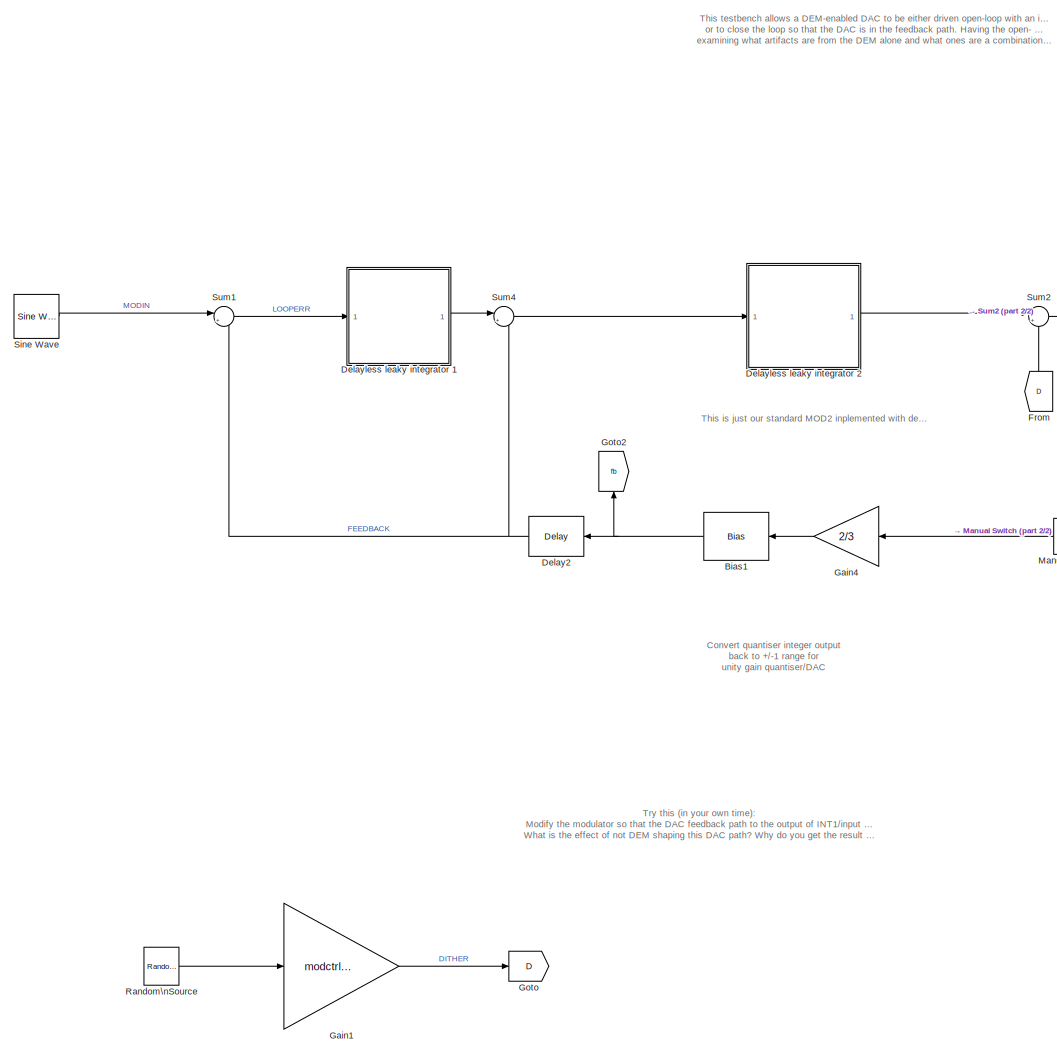
[diagram: root canvas - part 1/2, left side, full height]
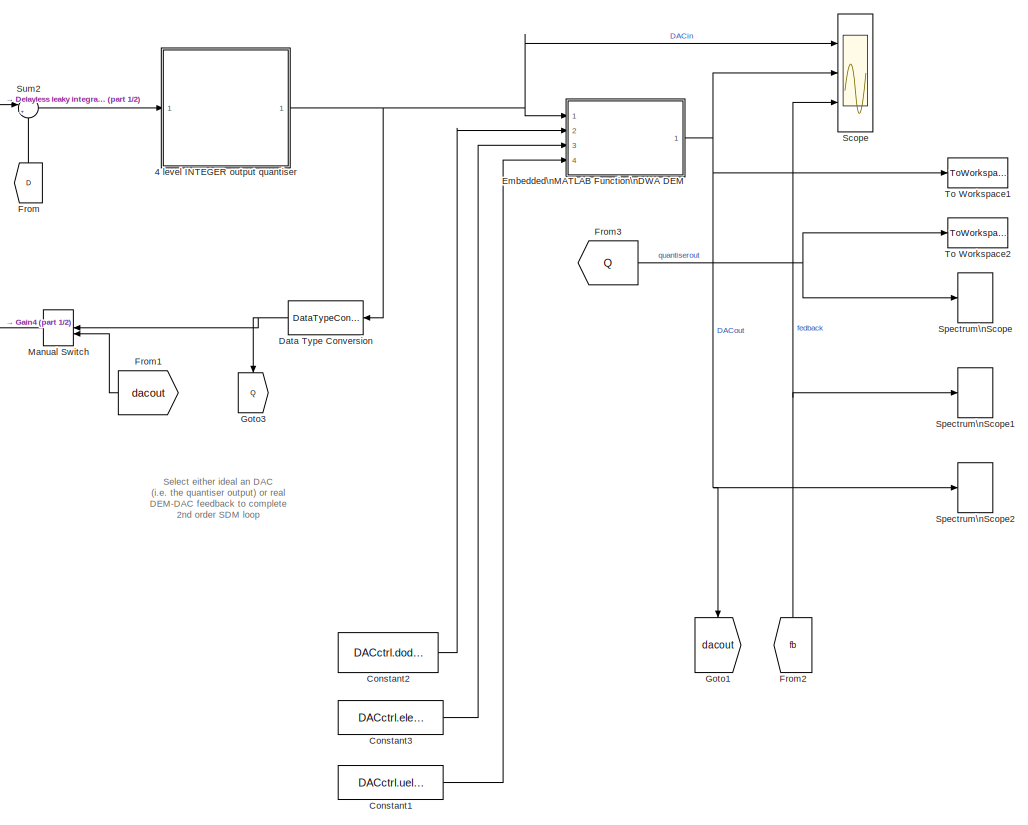
[diagram: root canvas - part 2/2, right side, full height]
MODEL mod2_dwatest
KIND model
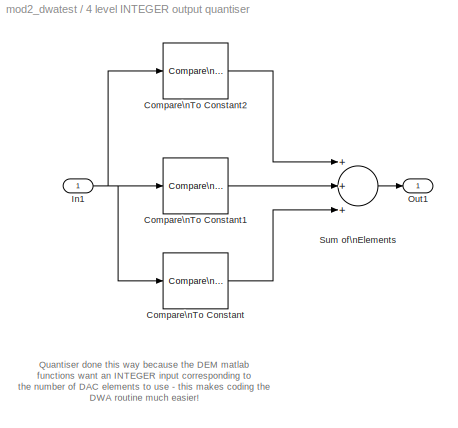
BLOCK [SubSystem] 4 level INTEGER  output quantiser
  FunctionWithSeparateData = off
  MaskHideContents = off
  MinAlgLoopOccurrences = off
  Opaque = off
  Ports = [1, 1]
  PropExecContextOutsideSubsystem = off
  RTWSystemCode = Auto
  RequestExecContextInheritance = off
  SID = 106
BLOCK [Reference] 4 level INTEGER  output quantiser/Compare\nTo Constant  REF=simulink/Logic and Bit\nOperations/Compare\nTo Constant
  OutDataTypeStr = uint8
  Ports = [1, 1]
  SID = 70
  SourceBlock = simulink/Logic and Bit\nOperations/Compare\nTo Constant
  SourceType = Compare To Constant
  ZeroCross = on
  const = -2/3
  relop = >=
BLOCK [Reference] 4 level INTEGER  output quantiser/Compare\nTo Constant1  REF=simulink/Logic and Bit\nOperations/Compare\nTo Constant
  OutDataTypeStr = uint8
  Ports = [1, 1]
  SID = 71
  SourceBlock = simulink/Logic and Bit\nOperations/Compare\nTo Constant
  SourceType = Compare To Constant
  ZeroCross = on
  const = 0
  relop = >=
BLOCK [Reference] 4 level INTEGER  output quantiser/Compare\nTo Constant2  REF=simulink/Logic and Bit\nOperations/Compare\nTo Constant
  OutDataTypeStr = uint8
  Ports = [1, 1]
  SID = 72
  SourceBlock = simulink/Logic and Bit\nOperations/Compare\nTo Constant
  SourceType = Compare To Constant
  ZeroCross = on
  const = 2/3
  relop = >=
BLOCK [Inport] 4 level INTEGER  output quantiser/In1
  IconDisplay = Port number
  SID = 107
BLOCK [Outport] 4 level INTEGER  output quantiser/Out1
  IconDisplay = Port number
  SID = 108
BLOCK [Sum] 4 level INTEGER  output quantiser/Sum of\nElements
  InputSameDT = off
  Inputs = +++
  OutDataTypeStr = Inherit: Inherit via internal rule
  Ports = [3, 1]
  SID = 81
  SaturateOnIntegerOverflow = off
BLOCK [Bias] Bias1
  Bias = -1
  SID = 98
  SaturateOnIntegerOverflow = off
BLOCK [Constant] Constant1
  SID = 90
  SampleTime = 1/Fs
  Value = DACctrl.uelement
BLOCK [Constant] Constant2
  SID = 74
  SampleTime = 1/Fs
  Value = DACctrl.dodem
BLOCK [Constant] Constant3
  SID = 75
  SampleTime = 1/Fs
  Value = DACctrl.elecount
BLOCK [DataTypeConversion] Data Type Conversion
  RndMeth = Floor
  SID = 88
  SaturateOnIntegerOverflow = off
BLOCK [Reference] Delay2  REF=dspsigops/Delay
  InputProcessing = Inherited (this choice will be removed - see release notes)
  Ports = [1, 1]
  SID = 69
  SourceBlock = dspsigops/Delay
  SourceType = Delay
  UserData = DataTag0
  UserDataPersistent = on
  delay = 1
  dif_ic_for_ch = off
  dif_ic_for_dly = off
  dly_unit = Samples
  ic = 0
  ic_detail = off
  reset_popup = None
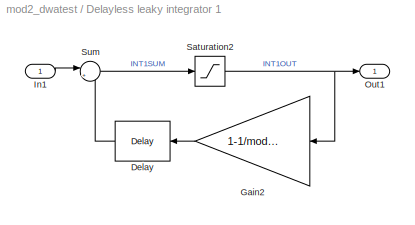
BLOCK [SubSystem] Delayless leaky integrator 1
  FunctionWithSeparateData = off
  MaskHideContents = off
  MinAlgLoopOccurrences = off
  Opaque = off
  Ports = [1, 1]
  PropExecContextOutsideSubsystem = off
  RTWSystemCode = Auto
  RequestExecContextInheritance = off
  SID = 109
BLOCK [Reference] Delayless leaky integrator 1/Delay  REF=dspsigops/Delay
  InputProcessing = Inherited (this choice will be removed - see release notes)
  Ports = [1, 1]
  SID = 67
  SourceBlock = dspsigops/Delay
  SourceType = Delay
  UserData = DataTag1
  UserDataPersistent = on
  delay = 1
  dif_ic_for_ch = off
  dif_ic_for_dly = off
  dly_unit = Samples
  ic = 0
  ic_detail = off
  reset_popup = None
BLOCK [Gain] Delayless leaky integrator 1/Gain2
  AttributesFormatString = Integrator leakage
  Gain = 1-1/modctrl.igain1
  OutDataTypeStr = Inherit: Inherit via internal rule
  ParamDataTypeStr = Inherit: Inherit via internal rule
  SID = 32
  SaturateOnIntegerOverflow = off
BLOCK [Inport] Delayless leaky integrator 1/In1
  IconDisplay = Port number
  SID = 111
BLOCK [Outport] Delayless leaky integrator 1/Out1
  IconDisplay = Port number
  SID = 110
BLOCK [Saturate] Delayless leaky integrator 1/Saturation2
  InputPortMap = u0
  LowerLimit = -(modctrl.isat1)
  Ports = [1, 1]
  SID = 86
  UpperLimit = modctrl.isat1
BLOCK [Sum] Delayless leaky integrator 1/Sum
  AttributesFormatString = Integrator summer
  IconShape = round
  InputSameDT = off
  Inputs = |++
  OutDataTypeStr = Inherit: Inherit via internal rule
  Ports = [2, 1]
  SID = 3
  SaturateOnIntegerOverflow = off
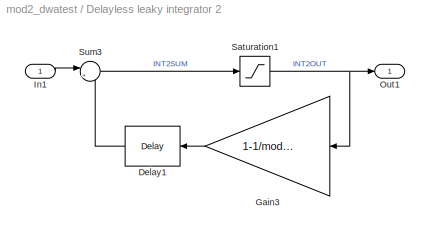
BLOCK [SubSystem] Delayless leaky integrator 2
  FunctionWithSeparateData = off
  MaskHideContents = off
  MinAlgLoopOccurrences = off
  Opaque = off
  Ports = [1, 1]
  PropExecContextOutsideSubsystem = off
  RTWSystemCode = Auto
  RequestExecContextInheritance = off
  SID = 112
BLOCK [Reference] Delayless leaky integrator 2/Delay1  REF=dspsigops/Delay
  InputProcessing = Inherited (this choice will be removed - see release notes)
  Ports = [1, 1]
  SID = 68
  SourceBlock = dspsigops/Delay
  SourceType = Delay
  UserData = DataTag2
  UserDataPersistent = on
  delay = 1
  dif_ic_for_ch = off
  dif_ic_for_dly = off
  dly_unit = Samples
  ic = 0
  ic_detail = off
  reset_popup = None
BLOCK [Gain] Delayless leaky integrator 2/Gain3
  AttributesFormatString = Integrator leakage
  Gain = 1-1/modctrl.igain2
  OutDataTypeStr = Inherit: Inherit via internal rule
  ParamDataTypeStr = Inherit: Inherit via internal rule
  SID = 61
  SaturateOnIntegerOverflow = off
BLOCK [Inport] Delayless leaky integrator 2/In1
  IconDisplay = Port number
  SID = 114
BLOCK [Outport] Delayless leaky integrator 2/Out1
  IconDisplay = Port number
  SID = 113
BLOCK [Saturate] Delayless leaky integrator 2/Saturation1
  InputPortMap = u0
  LowerLimit = -(modctrl.isat2)
  Ports = [1, 1]
  SID = 62
  UpperLimit = modctrl.isat2
BLOCK [Sum] Delayless leaky integrator 2/Sum3
  AttributesFormatString = Integrator summer
  IconShape = round
  InputSameDT = off
  Inputs = |++
  OutDataTypeStr = Inherit: Inherit via internal rule
  Ports = [2, 1]
  SID = 63
  SaturateOnIntegerOverflow = off
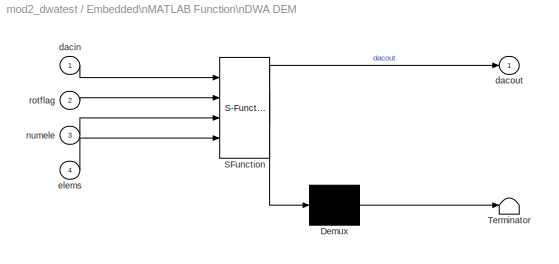
BLOCK [SubSystem] Embedded\nMATLAB Function\nDWA DEM
  ErrorFcn = Stateflow.Translate.translate
  FunctionWithSeparateData = off
  MaskHideContents = off
  MinAlgLoopOccurrences = off
  Opaque = off
  PermitHierarchicalResolution = ExplicitOnly
  Ports = [4, 1]
  PropExecContextOutsideSubsystem = off
  RTWSystemCode = Auto
  RequestExecContextInheritance = off
  SFBlockType = MATLAB Function
  SID = 116
  TreatAsAtomicUnit = on
BLOCK [Demux] Embedded\nMATLAB Function\nDWA DEM/ Demux 
  Outputs = 1
  Ports = [1, 1]
  SID = 116::80
BLOCK [S-Function] Embedded\nMATLAB Function\nDWA DEM/ SFunction 
  EnableBusSupport = on
  FunctionName = sf_sfun
  PortCounts = [4 2]
  Ports = [4, 2]
  SID = 116::79
  Tag = Stateflow S-Function mod2_dwatest 2
BLOCK [Terminator] Embedded\nMATLAB Function\nDWA DEM/ Terminator 
  SID = 116::81
BLOCK [Inport] Embedded\nMATLAB Function\nDWA DEM/dacin
  IconDisplay = Port number
  SID = 116::78
BLOCK [Outport] Embedded\nMATLAB Function\nDWA DEM/dacout
  IconDisplay = Port number
  SID = 116::85
BLOCK [Inport] Embedded\nMATLAB Function\nDWA DEM/elems
  IconDisplay = Port number
  Port = 4
  SID = 116::84
BLOCK [Inport] Embedded\nMATLAB Function\nDWA DEM/numele
  IconDisplay = Port number
  Port = 3
  SID = 116::83
BLOCK [Inport] Embedded\nMATLAB Function\nDWA DEM/rotflag
  IconDisplay = Port number
  Port = 2
  SID = 116::82
BLOCK [From] From
  GotoTag = D
  SID = 93
BLOCK [From] From1
  GotoTag = dacout
  SID = 96
BLOCK [From] From2
  GotoTag = fb
  SID = 102
BLOCK [From] From3
  GotoTag = Q
  SID = 105
BLOCK [Gain] Gain1
  AttributesFormatString = Dither level adjust
  Gain = modctrl.dgain1
  OutDataTypeStr = Inherit: Inherit via internal rule
  ParamDataTypeStr = Inherit: Inherit via internal rule
  SID = 29
  SaturateOnIntegerOverflow = off
BLOCK [Gain] Gain4
  AttributesFormatString = Integrator leakage
  Gain = 2/3
  OutDataTypeStr = Inherit: Inherit via internal rule
  ParamDataTypeStr = Inherit: Inherit via internal rule
  SID = 99
  SaturateOnIntegerOverflow = off
BLOCK [Goto] Goto
  GotoTag = D
  SID = 92
BLOCK [Goto] Goto1
  GotoTag = dacout
  SID = 97
BLOCK [Goto] Goto2
  GotoTag = fb
  SID = 100
BLOCK [Goto] Goto3
  GotoTag = Q
  SID = 104
BLOCK [ManualSwitch] Manual Switch
  CurrentSetting = 0
  SID = 94
BLOCK [Reference] Random\nSource  REF=dspsrcs4/Random\nSource
  AttributesFormatString = Dither source
  CltLength = 12
  DataType = Double
  IsInherit = off
  MaxVal = 1
  MeanVal = 0
  MinVal = -1
  NormMethod = Ziggurat
  OutComplex = Real
  Ports = [0, 1]
  RepMode = Not repeatable
  SID = 25
  SampFrame = 1
  SampMode = Discrete
  SampTime = 1/Fs
  SourceBlock = dspsrcs4/Random\nSource
  SourceType = Random Source
  SrcType = Uniform
  UserData = DataTag3
  UserDataPersistent = on
  VarVal = 1
  rawSeed = 1
BLOCK [Scope] Scope
  DataFormat = StructureWithTime
  Floating = off
  NumInputPorts = 3
  Ports = [3]
  SID = 80
  SampleTime = 0
  ShowLegends = off
  YMax = 5~5~5
  YMin = -5~-5~-5
  ZoomMode = xonly
BLOCK [Reference] Sine Wave  REF=dspsrcs4/Sine Wave
  Amplitude = sinamp
  CompMethod = Trigonometric fcn
  Frequency = sinfreq
  LastOutDataTypeStr = double
  OutComplex = Real
  OutDataTypeStr = double
  Phase = 0
  Ports = [0, 1]
  ResetState = Restart at time zero
  SID = 85
  SampleMode = Discrete
  SampleTime = 1/Fs
  SamplesPerFrame = 1
  SourceBlock = dspsrcs4/Sine Wave
  SourceType = Sine Wave
  TableSize = Speed
  additionalParams = off
  allowOverrides = on
  dataType = double
  fracBitsMode = Best precision
  numFracBits = 15
  udDataType = sfix(16)
  wordLen = 16
BLOCK [SpectrumAnalyzer] Spectrum\nScope
  CloseFcn = scopeextensions.ScopeBlock.callback(gcbh, 'onBlockClose');
  CopyFcn = scopeextensions.ScopeBlock.callback(gcbh, 'onBlockCopy', gcbh);
  DeleteFcn = scopeextensions.ScopeBlock.callback(gcbh, 'onBlockDelete');
  NameChangeFcn = scopeextensions.ScopeBlock.callback(gcbh, 'onBlockRename');
  Ports = [1]
  PreDeleteFcn = scopeextensions.ScopeBlock.callback(gcbh, 'onBlockPreDelete');
  PreSaveFcn = scopeextensions.ScopeBlock.callback(gcbh, 'onModelSave');
  SID = 21
  UserData = DataTag4
  UserDataPersistent = on
BLOCK [SpectrumAnalyzer] Spectrum\nScope1
  CloseFcn = scopeextensions.ScopeBlock.callback(gcbh, 'onBlockClose');
  CopyFcn = scopeextensions.ScopeBlock.callback(gcbh, 'onBlockCopy', gcbh);
  DeleteFcn = scopeextensions.ScopeBlock.callback(gcbh, 'onBlockDelete');
  NameChangeFcn = scopeextensions.ScopeBlock.callback(gcbh, 'onBlockRename');
  Ports = [1]
  PreDeleteFcn = scopeextensions.ScopeBlock.callback(gcbh, 'onBlockPreDelete');
  PreSaveFcn = scopeextensions.ScopeBlock.callback(gcbh, 'onModelSave');
  SID = 117
  UserData = DataTag5
  UserDataPersistent = on
BLOCK [SpectrumAnalyzer] Spectrum\nScope2
  CloseFcn = scopeextensions.ScopeBlock.callback(gcbh, 'onBlockClose');
  CopyFcn = scopeextensions.ScopeBlock.callback(gcbh, 'onBlockCopy', gcbh);
  DeleteFcn = scopeextensions.ScopeBlock.callback(gcbh, 'onBlockDelete');
  NameChangeFcn = scopeextensions.ScopeBlock.callback(gcbh, 'onBlockRename');
  Ports = [1]
  PreDeleteFcn = scopeextensions.ScopeBlock.callback(gcbh, 'onBlockPreDelete');
  PreSaveFcn = scopeextensions.ScopeBlock.callback(gcbh, 'onModelSave');
  SID = 118
  UserData = DataTag6
  UserDataPersistent = on
BLOCK [Sum] Sum1
  AttributesFormatString = Modulator input\\nloop servo error (input - fbk)
  IconShape = round
  InputSameDT = off
  Inputs = |+-
  OutDataTypeStr = Inherit: Inherit via internal rule
  Ports = [2, 1]
  SID = 7
  SaturateOnIntegerOverflow = off
BLOCK [Sum] Sum2
  IconShape = round
  InputSameDT = off
  Inputs = |++
  OutDataTypeStr = Inherit: Inherit via internal rule
  Ports = [2, 1]
  SID = 30
  SaturateOnIntegerOverflow = off
BLOCK [Sum] Sum4
  IconShape = round
  InputSameDT = off
  Inputs = |+-
  OutDataTypeStr = Inherit: Inherit via internal rule
  Ports = [2, 1]
  SID = 64
  SaturateOnIntegerOverflow = off
BLOCK [ToWorkspace] To Workspace1
  MaxDataPoints = inf
  Ports = [1]
  SID = 91
  SampleTime = -1
  VariableName = DACout
BLOCK [ToWorkspace] To Workspace2
  MaxDataPoints = inf
  Ports = [1]
  SID = 103
  SampleTime = -1
  VariableName = Qout
ANNOTATION (root): This is just our standard MOD2 inplemented with delayless integrators \n\n\n\n\n\n\n\n\n\n\n\n\n\n\n\n\n\n
ANNOTATION (root): Select either ideal an DAC \n(i.e. the quantiser output) or real\nDEM-DAC feedback to complete\n2nd order SDM loop
ANNOTATION (root): Convert quantiser integer output\nback to +/-1 range for\nunity gain quantiser/DAC
ANNOTATION (root): This testbench allows a DEM-enabled DAC to be either driven open-loop with an ideal 2nd order, 2-bit SDM modulated input,\nor to close the loop so that the DAC is in the feedback path. Having the open- and closed-loop options helps in\nexamining what artifacts are from the DEM alone and what ones are a combination of the DEM and SDM loop dynamics
ANNOTATION (root): Try this (in your own time):\nModify the modulator so that the DAC feedback path to the output of INT1/input of INT2 (marked XYZZY) is not DEM shaped.\nWhat is the effect of not DEM shaping this DAC path? Why do you get the result you do?
ANNOTATION 4 level INTEGER  output quantiser: Quantiser done this way because the DEM matlab\nfunctions want an INTEGER input corresponding to\nthe number of DAC elements to use - this makes coding the\nDWA routine much easier!
LINE 4 level INTEGER  output quantiser/Compare\nTo Constant1:1 -> 4 level INTEGER  output quantiser/Sum of\nElements:2
LINE 4 level INTEGER  output quantiser/Compare\nTo Constant2:1 -> 4 level INTEGER  output quantiser/Sum of\nElements:1
LINE 4 level INTEGER  output quantiser/Compare\nTo Constant:1 -> 4 level INTEGER  output quantiser/Sum of\nElements:3
NET 4 level INTEGER  output quantiser/In1:1 -> 4 level INTEGER  output quantiser/Compare\nTo Constant1:1, 4 level INTEGER  output quantiser/Compare\nTo Constant2:1, 4 level INTEGER  output quantiser/Compare\nTo Constant:1
LINE 4 level INTEGER  output quantiser/Sum of\nElements:1 -> 4 level INTEGER  output quantiser/Out1:1
NET 4 level INTEGER  output quantiser:1 -> Data Type Conversion:1, Embedded\nMATLAB Function\nDWA DEM:1, Scope:1
NET Bias1:1 -> Delay2:1, Goto2:1
LINE Constant1:1 -> Embedded\nMATLAB Function\nDWA DEM:4
LINE Constant2:1 -> Embedded\nMATLAB Function\nDWA DEM:2
LINE Constant3:1 -> Embedded\nMATLAB Function\nDWA DEM:3
NET Data Type Conversion:1 -> Goto3:1, Manual Switch:1
NET Delay2:1 -> Sum1:2, Sum4:2
LINE Delayless leaky integrator 1/Delay:1 -> Delayless leaky integrator 1/Sum:2
LINE Delayless leaky integrator 1/Gain2:1 -> Delayless leaky integrator 1/Delay:1
LINE Delayless leaky integrator 1/In1:1 -> Delayless leaky integrator 1/Sum:1
NET Delayless leaky integrator 1/Saturation2:1 -> Delayless leaky integrator 1/Gain2:1, Delayless leaky integrator 1/Out1:1
LINE Delayless leaky integrator 1/Sum:1 -> Delayless leaky integrator 1/Saturation2:1
LINE Delayless leaky integrator 1:1 -> Sum4:1
LINE Delayless leaky integrator 2/Delay1:1 -> Delayless leaky integrator 2/Sum3:2
LINE Delayless leaky integrator 2/Gain3:1 -> Delayless leaky integrator 2/Delay1:1
LINE Delayless leaky integrator 2/In1:1 -> Delayless leaky integrator 2/Sum3:1
NET Delayless leaky integrator 2/Saturation1:1 -> Delayless leaky integrator 2/Gain3:1, Delayless leaky integrator 2/Out1:1
LINE Delayless leaky integrator 2/Sum3:1 -> Delayless leaky integrator 2/Saturation1:1
LINE Delayless leaky integrator 2:1 -> Sum2:1
LINE Embedded\nMATLAB Function\nDWA DEM/ Demux :1 -> Embedded\nMATLAB Function\nDWA DEM/ Terminator :1
LINE Embedded\nMATLAB Function\nDWA DEM/ SFunction :1 -> Embedded\nMATLAB Function\nDWA DEM/ Demux :1
LINE Embedded\nMATLAB Function\nDWA DEM/ SFunction :2 -> Embedded\nMATLAB Function\nDWA DEM/dacout:1
LINE Embedded\nMATLAB Function\nDWA DEM/dacin:1 -> Embedded\nMATLAB Function\nDWA DEM/ SFunction :1
LINE Embedded\nMATLAB Function\nDWA DEM/elems:1 -> Embedded\nMATLAB Function\nDWA DEM/ SFunction :4
LINE Embedded\nMATLAB Function\nDWA DEM/numele:1 -> Embedded\nMATLAB Function\nDWA DEM/ SFunction :3
LINE Embedded\nMATLAB Function\nDWA DEM/rotflag:1 -> Embedded\nMATLAB Function\nDWA DEM/ SFunction :2
NET Embedded\nMATLAB Function\nDWA DEM:1 -> Goto1:1, Scope:2, Spectrum\nScope2:1, To Workspace1:1
LINE From1:1 -> Manual Switch:2
NET From2:1 -> Scope:3, Spectrum\nScope1:1
NET From3:1 -> Spectrum\nScope:1, To Workspace2:1
LINE From:1 -> Sum2:2
LINE Gain1:1 -> Goto:1
LINE Gain4:1 -> Bias1:1
LINE Manual Switch:1 -> Gain4:1
LINE Random\nSource:1 -> Gain1:1
LINE Sine Wave:1 -> Sum1:1
LINE Sum1:1 -> Delayless leaky integrator 1:1
LINE Sum2:1 -> 4 level INTEGER  output quantiser:1
LINE Sum4:1 -> Delayless leaky integrator 2:1
note: NET lines group one-source signal fan-out (src -> all destinations, sorted); 1:1 wires keep LINE
CHART Embedded\nMATLAB Function\nDWA DEM states=1 transitions=1
  STATE_LABEL 'eML_blk_kernel()'
